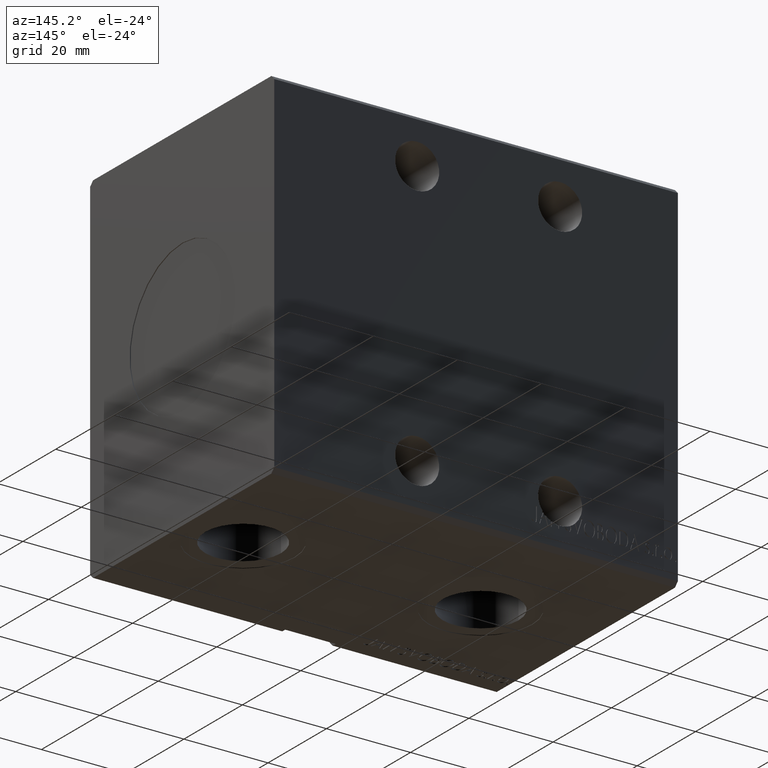
[diagram: clean part render]
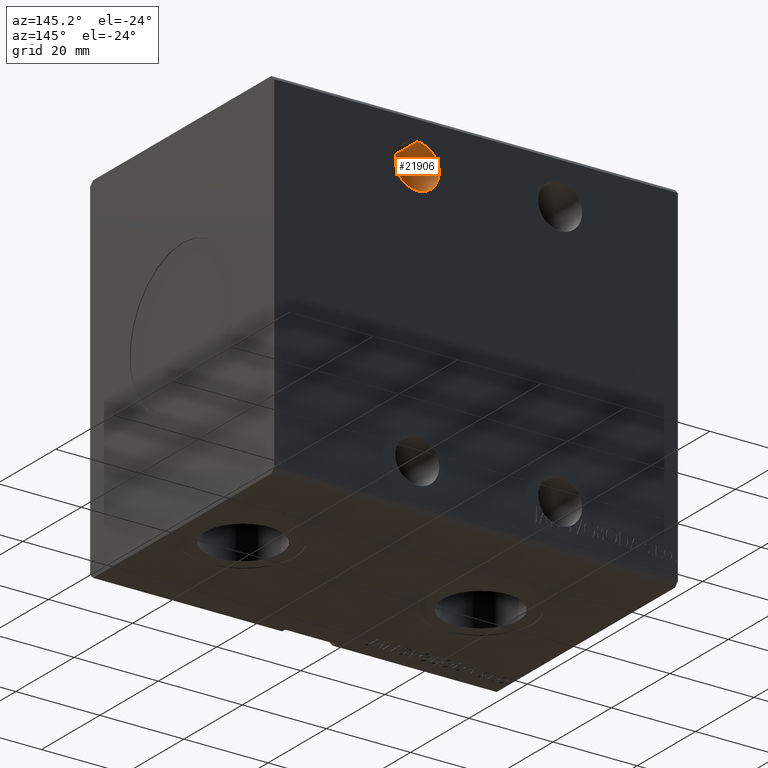
[diagram: same view with one face highlighted and labeled with its STEP entity id]
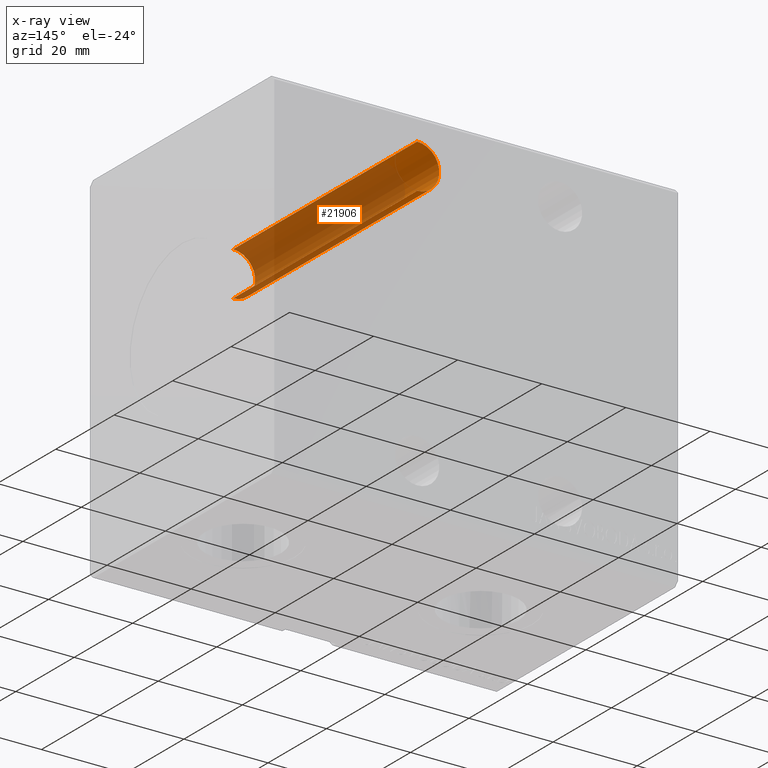
[diagram: x-ray of the same camera — body ghosted, the highlighted face saturated]
A machine part, auxiliary view. The second image highlights one B-rep face of the part: STEP entity #21906.
The next image is the same camera in x-ray: the body ghosted, the highlighted face saturated — about 81% of this face is hidden behind the body in this view.
In plain terms, the highlighted cylindrical surface (edge-blend (fillet) strip) has radius 5.25 mm, axis along (-0, -1, -0).
Its self-contained STEP definition (entity closure, byte-faithful):
#67 = ORIENTED_EDGE ( 'NONE', *, *, #22356, .T. ) ;
#781 = DIRECTION ( 'NONE',  ( 0.000000000000000000, -1.000000000000000000, -0.000000000000000000 ) ) ;
#1062 = CARTESIAN_POINT ( 'NONE',  ( 62.00000000000000000, 31.50000000000002842, 36.75000000000001421 ) ) ;
#1302 = CARTESIAN_POINT ( 'NONE',  ( 62.00000000000000000, 31.50000000000002842, 36.75000000000001421 ) ) ;
#4094 = CIRCLE ( 'NONE', #14016, 5.250000000000004441 ) ;
#5247 = CIRCLE ( 'NONE', #8563, 5.250000000000004441 ) ;
#8067 = EDGE_CURVE ( 'NONE', #8660, #8220, #5247, .T. ) ;
#8220 = VERTEX_POINT ( 'NONE', #1302 ) ;
#8563 = AXIS2_PLACEMENT_3D ( 'NONE', #8605, #39979, #21209 ) ;
#8586 = CYLINDRICAL_SURFACE ( 'NONE', #10720, 5.250000000000004441 ) ;
#8605 = CARTESIAN_POINT ( 'NONE',  ( 62.00000000000000000, 31.50000000000002842, 31.50000000000000711 ) ) ;
#8660 = VERTEX_POINT ( 'NONE', #22367 ) ;
#10720 = AXIS2_PLACEMENT_3D ( 'NONE', #30263, #20764, #14776 ) ;
#12093 = CARTESIAN_POINT ( 'NONE',  ( 62.00000000000000000, -31.50000000000000000, 36.75000000000000711 ) ) ;
#12313 = EDGE_CURVE ( 'NONE', #8660, #12716, #31446, .T. ) ;
#12716 = VERTEX_POINT ( 'NONE', #27843 ) ;
#13235 = DIRECTION ( 'NONE',  ( -0.000000000000000000, -1.000000000000000000, -5.507058653894625853E-17 ) ) ;
#14016 = AXIS2_PLACEMENT_3D ( 'NONE', #26410, #781, #38793 ) ;
#14776 = DIRECTION ( 'NONE',  ( 0.000000000000000000, 0.000000000000000000, -1.000000000000000000 ) ) ;
#19079 = VECTOR ( 'NONE', #13235, 1000.000000000000000 ) ;
#20764 = DIRECTION ( 'NONE',  ( -0.000000000000000000, -1.000000000000000000, -5.507058653894625853E-17 ) ) ;
#21209 = DIRECTION ( 'NONE',  ( 0.000000000000000000, 0.000000000000000000, 1.000000000000000000 ) ) ;
#21906 = ADVANCED_FACE ( 'NONE', ( #36269 ), #8586, .F. ) ;
#22356 = EDGE_CURVE ( 'NONE', #22767, #12716, #4094, .T. ) ;
#22367 = CARTESIAN_POINT ( 'NONE',  ( 62.00000000000000000, 31.50000000000002842, 26.25000000000000355 ) ) ;
#22767 = VERTEX_POINT ( 'NONE', #12093 ) ;
#23393 = LINE ( 'NONE', #1062, #37336 ) ;
#24012 = EDGE_LOOP ( 'NONE', ( #29513, #35684, #67, #39286 ) ) ;
#26285 = DIRECTION ( 'NONE',  ( -0.000000000000000000, -1.000000000000000000, -5.507058653894625853E-17 ) ) ;
#26410 = CARTESIAN_POINT ( 'NONE',  ( 62.00000000000000000, -31.50000000000000000, 31.50000000000000000 ) ) ;
#27843 = CARTESIAN_POINT ( 'NONE',  ( 62.00000000000000000, -31.50000000000000000, 26.24999999999999645 ) ) ;
#29513 = ORIENTED_EDGE ( 'NONE', *, *, #8067, .T. ) ;
#30263 = CARTESIAN_POINT ( 'NONE',  ( 62.00000000000000000, 31.50000000000002842, 31.50000000000000711 ) ) ;
#31446 = LINE ( 'NONE', #37633, #19079 ) ;
#33900 = EDGE_CURVE ( 'NONE', #8220, #22767, #23393, .T. ) ;
#35684 = ORIENTED_EDGE ( 'NONE', *, *, #33900, .T. ) ;
#36269 = FACE_OUTER_BOUND ( 'NONE', #24012, .T. ) ;
#37336 = VECTOR ( 'NONE', #26285, 1000.000000000000000 ) ;
#37633 = CARTESIAN_POINT ( 'NONE',  ( 62.00000000000000000, 31.50000000000002842, 26.25000000000000355 ) ) ;
#38793 = DIRECTION ( 'NONE',  ( 0.000000000000000000, 0.000000000000000000, 1.000000000000000000 ) ) ;
#39286 = ORIENTED_EDGE ( 'NONE', *, *, #12313, .F. ) ;
#39979 = DIRECTION ( 'NONE',  ( -0.000000000000000000, 1.000000000000000000, 5.507058653894625853E-17 ) ) ;